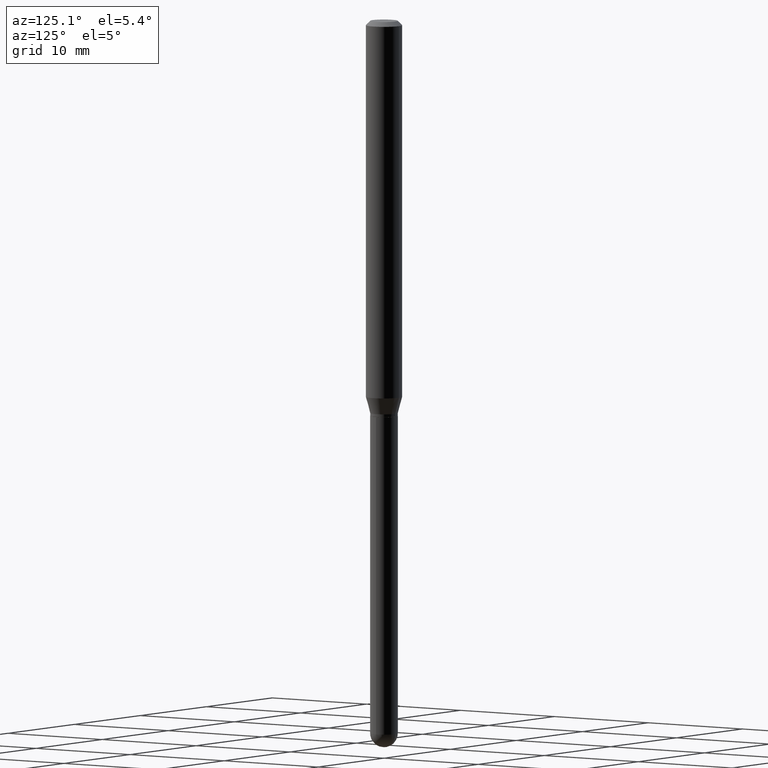
[diagram: clean part render]
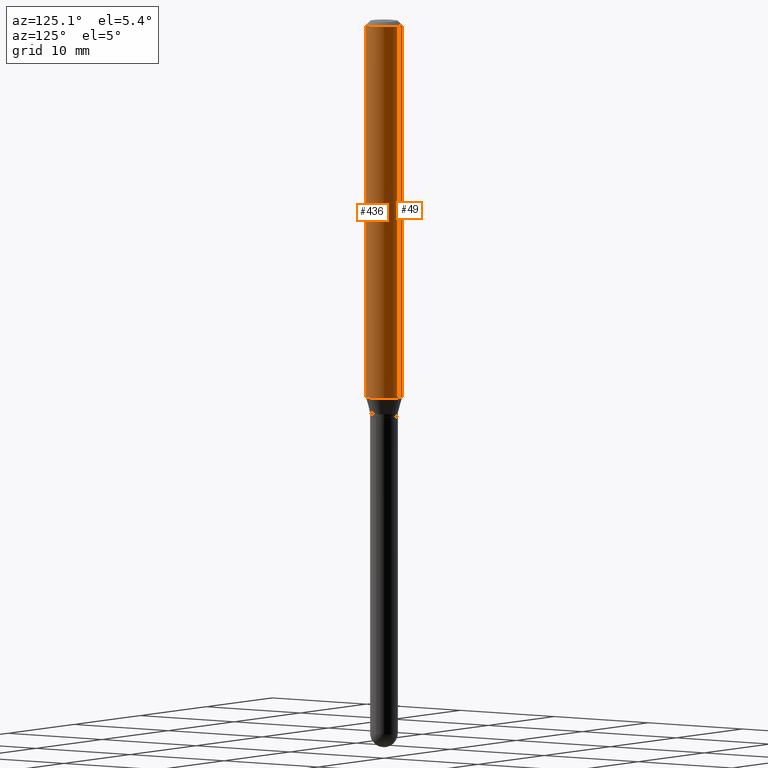
[diagram: same view with one multi-face feature highlighted, each face labeled with its STEP entity id]
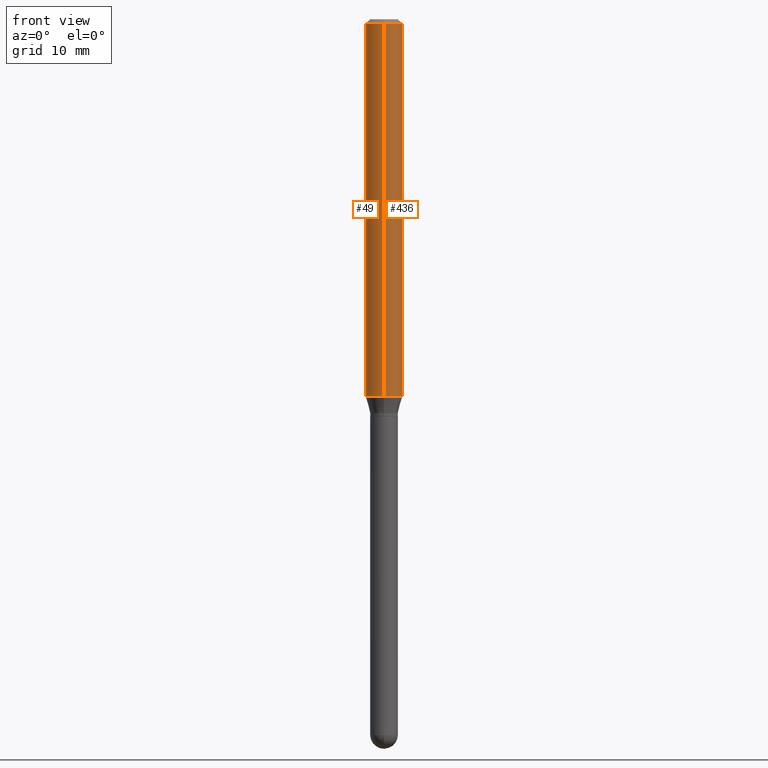
[diagram: same view with one multi-face feature highlighted, each face labeled with its STEP entity id]
A machine part, auxiliary view. The highlighted faces form ONE feature: a constant-radius fillet chain: 2 tangent blend faces with common blend radius 1.5875 mm. The faces share edges in the B-rep.
A second angle (front view) of the same feature is appended — it is thin or edge-on in the first view.
Their STEP definitions:
[1] entity #436 (Cylinder):
#1 = AXIS2_PLACEMENT_3D ( 'NONE', #165, #325, #30 ) ;
#6 = DIRECTION ( 'NONE',  ( -2.445498603033242318E-29, 3.491438668060727098E-15, 1.000000000000000000 ) ) ;
#30 = DIRECTION ( 'NONE',  ( -6.982962677686265922E-15, -1.000000000000000000, 3.483106191921935554E-15 ) ) ;
#39 = ORIENTED_EDGE ( 'NONE', *, *, #213, .F. ) ;
#48 = CYLINDRICAL_SURFACE ( 'NONE', #315, 0.06250000000000000000 ) ;
#80 = DIRECTION ( 'NONE',  ( -2.445498603033242318E-29, 3.491438668060727098E-15, 1.000000000000000000 ) ) ;
#98 = VERTEX_POINT ( 'NONE', #372 ) ;
#105 = VERTEX_POINT ( 'NONE', #336 ) ;
#108 = ORIENTED_EDGE ( 'NONE', *, *, #135, .T. ) ;
#113 = LINE ( 'NONE', #512, #270 ) ;
#121 = DIRECTION ( 'NONE',  ( -6.982962677686265922E-15, -1.000000000000000000, 3.491438668060727098E-15 ) ) ;
#135 = EDGE_CURVE ( 'NONE', #146, #105, #314, .T. ) ;
#137 = CIRCLE ( 'NONE', #1, 0.06250000000000000000 ) ;
#146 = VERTEX_POINT ( 'NONE', #328 ) ;
#165 = CARTESIAN_POINT ( 'NONE',  ( 3.668247904549865806E-31, -5.237158002091093384E-17, -0.01500000000000000812 ) ) ;
#173 = DIRECTION ( 'NONE',  ( -6.982962677686265922E-15, -1.000000000000000000, 4.370956789862821150E-15 ) ) ;
#212 = DIRECTION ( 'NONE',  ( -2.445498603033242318E-29, 3.491438668060727098E-15, 1.000000000000000000 ) ) ;
#213 = EDGE_CURVE ( 'NONE', #146, #98, #230, .T. ) ;
#218 = EDGE_CURVE ( 'NONE', #98, #264, #137, .T. ) ;
#230 = LINE ( 'NONE', #498, #236 ) ;
#236 = VECTOR ( 'NONE', #80, 39.37007874015748143 ) ;
#264 = VERTEX_POINT ( 'NONE', #462 ) ;
#270 = VECTOR ( 'NONE', #212, 39.37007874015748143 ) ;
#292 = DIRECTION ( 'NONE',  ( -2.445498603033242318E-29, 3.491438668060727098E-15, 1.000000000000000000 ) ) ;
#314 = CIRCLE ( 'NONE', #409, 0.06250000000000000000 ) ;
#315 = AXIS2_PLACEMENT_3D ( 'NONE', #474, #6, #121 ) ;
#325 = DIRECTION ( 'NONE',  ( -2.445498603033242318E-29, 3.491438668060727098E-15, 1.000000000000000000 ) ) ;
#328 = CARTESIAN_POINT ( 'NONE',  ( -4.364351673553597698E-16, -0.06250000000000448253, -1.294019237886465890 ) ) ;
#336 = CARTESIAN_POINT ( 'NONE',  ( 4.440892098500943678E-16, 0.06249999999999551054, -1.294019237886466334 ) ) ;
#372 = CARTESIAN_POINT ( 'NONE',  ( -4.364351673553912750E-16, -0.06250000000000005551, -0.01499999999999979128 ) ) ;
#405 = FACE_OUTER_BOUND ( 'NONE', #420, .T. ) ;
#409 = AXIS2_PLACEMENT_3D ( 'NONE', #479, #292, #173 ) ;
#413 = ORIENTED_EDGE ( 'NONE', *, *, #444, .T. ) ;
#418 = ORIENTED_EDGE ( 'NONE', *, *, #218, .F. ) ;
#420 = EDGE_LOOP ( 'NONE', ( #108, #413, #418, #39 ) ) ;
#436 = ADVANCED_FACE ( 'NONE', ( #405 ), #48, .T. ) ;
#444 = EDGE_CURVE ( 'NONE', #105, #264, #113, .T. ) ;
#462 = CARTESIAN_POINT ( 'NONE',  ( 4.440892098500944664E-16, 0.06249999999999995143, -0.01500000000000022669 ) ) ;
#474 = CARTESIAN_POINT ( 'NONE',  ( 0.000000000000000000, 0.000000000000000000, 0.000000000000000000 ) ) ;
#479 = CARTESIAN_POINT ( 'NONE',  ( 3.164522238549493662E-29, -4.517988804371280319E-15, -1.294019237886466112 ) ) ;
#498 = CARTESIAN_POINT ( 'NONE',  ( -4.364351673553916201E-16, -0.06250000000000000000, 2.182149167537954436E-16 ) ) ;
#512 = CARTESIAN_POINT ( 'NONE',  ( 4.440892098500625669E-16, 0.06250000000000000000, -2.182149167537954436E-16 ) ) ;
[2] entity #49 (Cylinder):
#29 = CARTESIAN_POINT ( 'NONE',  ( 3.164522238549493662E-29, -4.517988804371280319E-15, -1.294019237886466112 ) ) ;
#36 = DIRECTION ( 'NONE',  ( -6.982962677686265922E-15, -1.000000000000000000, 3.491438668060727098E-15 ) ) ;
#41 = ORIENTED_EDGE ( 'NONE', *, *, #103, .F. ) ;
#49 = ADVANCED_FACE ( 'NONE', ( #398 ), #171, .T. ) ;
#72 = CIRCLE ( 'NONE', #383, 0.06250000000000000000 ) ;
#80 = DIRECTION ( 'NONE',  ( -2.445498603033242318E-29, 3.491438668060727098E-15, 1.000000000000000000 ) ) ;
#98 = VERTEX_POINT ( 'NONE', #372 ) ;
#103 = EDGE_CURVE ( 'NONE', #264, #98, #72, .T. ) ;
#105 = VERTEX_POINT ( 'NONE', #336 ) ;
#109 = DIRECTION ( 'NONE',  ( -6.982962677686265922E-15, -1.000000000000000000, 4.370956789862821150E-15 ) ) ;
#113 = LINE ( 'NONE', #512, #270 ) ;
#140 = CARTESIAN_POINT ( 'NONE',  ( 3.668247904549865806E-31, -5.237158002091093384E-17, -0.01500000000000000812 ) ) ;
#146 = VERTEX_POINT ( 'NONE', #328 ) ;
#171 = CYLINDRICAL_SURFACE ( 'NONE', #277, 0.06250000000000000000 ) ;
#202 = CIRCLE ( 'NONE', #240, 0.06250000000000000000 ) ;
#212 = DIRECTION ( 'NONE',  ( -2.445498603033242318E-29, 3.491438668060727098E-15, 1.000000000000000000 ) ) ;
#213 = EDGE_CURVE ( 'NONE', #146, #98, #230, .T. ) ;
#219 = ORIENTED_EDGE ( 'NONE', *, *, #253, .T. ) ;
#230 = LINE ( 'NONE', #498, #236 ) ;
#236 = VECTOR ( 'NONE', #80, 39.37007874015748143 ) ;
#240 = AXIS2_PLACEMENT_3D ( 'NONE', #29, #310, #109 ) ;
#253 = EDGE_CURVE ( 'NONE', #105, #146, #202, .T. ) ;
#255 = EDGE_LOOP ( 'NONE', ( #302, #219, #326, #41 ) ) ;
#264 = VERTEX_POINT ( 'NONE', #462 ) ;
#270 = VECTOR ( 'NONE', #212, 39.37007874015748143 ) ;
#277 = AXIS2_PLACEMENT_3D ( 'NONE', #391, #437, #36 ) ;
#302 = ORIENTED_EDGE ( 'NONE', *, *, #444, .F. ) ;
#310 = DIRECTION ( 'NONE',  ( -2.445498603033242318E-29, 3.491438668060727098E-15, 1.000000000000000000 ) ) ;
#326 = ORIENTED_EDGE ( 'NONE', *, *, #213, .T. ) ;
#328 = CARTESIAN_POINT ( 'NONE',  ( -4.364351673553597698E-16, -0.06250000000000448253, -1.294019237886465890 ) ) ;
#333 = DIRECTION ( 'NONE',  ( -2.445498603033242318E-29, 3.491438668060727098E-15, 1.000000000000000000 ) ) ;
#336 = CARTESIAN_POINT ( 'NONE',  ( 4.440892098500943678E-16, 0.06249999999999551054, -1.294019237886466334 ) ) ;
#372 = CARTESIAN_POINT ( 'NONE',  ( -4.364351673553912750E-16, -0.06250000000000005551, -0.01499999999999979128 ) ) ;
#383 = AXIS2_PLACEMENT_3D ( 'NONE', #140, #333, #481 ) ;
#391 = CARTESIAN_POINT ( 'NONE',  ( 0.000000000000000000, 0.000000000000000000, 0.000000000000000000 ) ) ;
#398 = FACE_OUTER_BOUND ( 'NONE', #255, .T. ) ;
#437 = DIRECTION ( 'NONE',  ( -2.445498603033242318E-29, 3.491438668060727098E-15, 1.000000000000000000 ) ) ;
#444 = EDGE_CURVE ( 'NONE', #105, #264, #113, .T. ) ;
#462 = CARTESIAN_POINT ( 'NONE',  ( 4.440892098500944664E-16, 0.06249999999999995143, -0.01500000000000022669 ) ) ;
#481 = DIRECTION ( 'NONE',  ( -6.982962677686265922E-15, -1.000000000000000000, 3.483106191921935554E-15 ) ) ;
#498 = CARTESIAN_POINT ( 'NONE',  ( -4.364351673553916201E-16, -0.06250000000000000000, 2.182149167537954436E-16 ) ) ;
#512 = CARTESIAN_POINT ( 'NONE',  ( 4.440892098500625669E-16, 0.06250000000000000000, -2.182149167537954436E-16 ) ) ;